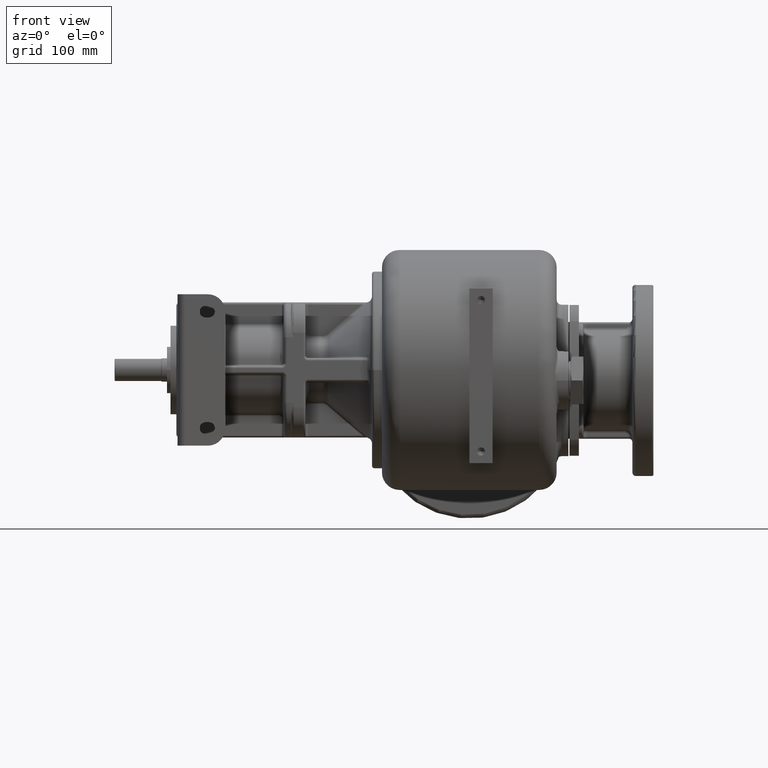
[diagram: clean part render]
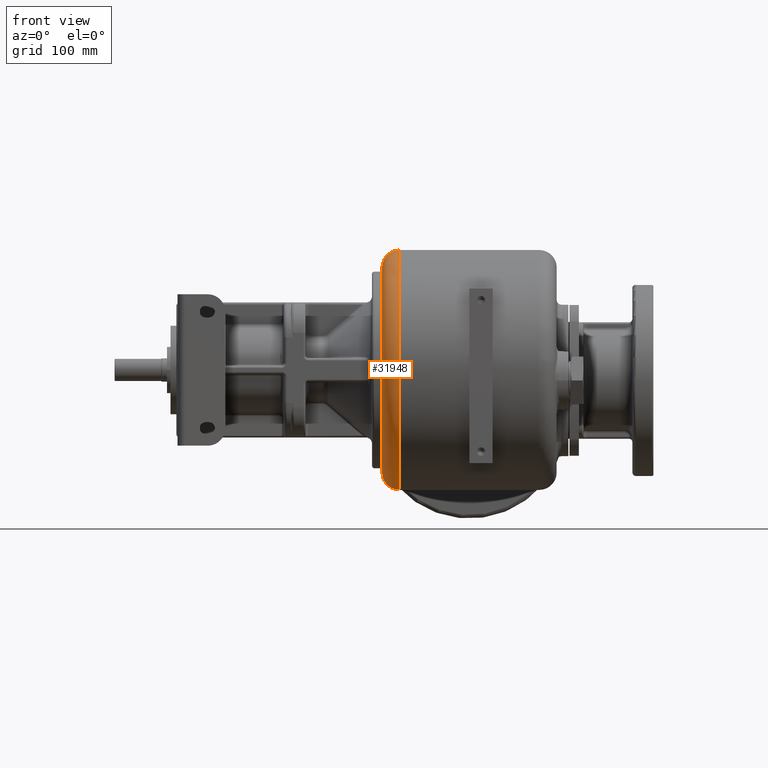
[diagram: same view with one face highlighted and labeled with its STEP entity id]
A machine part, front view. The second image highlights one B-rep face of the part: STEP entity #31948.
In plain terms, the highlighted toroidal blend (fillet) surface has major radius 88 mm and minor (blend) radius 15 mm.
Its self-contained STEP definition (entity closure, byte-faithful):
#5384=CARTESIAN_POINT('',(-8.5E1,1.04E2,0.E0));
#5385=DIRECTION('',(-1.E0,0.E0,0.E0));
#5386=DIRECTION('',(0.E0,0.E0,-1.E0));
#5387=AXIS2_PLACEMENT_3D('',#5384,#5385,#5386);
#11907=CARTESIAN_POINT('',(-7.E1,1.04E2,-8.8E1));
#11908=DIRECTION('',(0.E0,-1.E0,0.E0));
#11909=DIRECTION('',(-1.E0,0.E0,0.E0));
#11910=AXIS2_PLACEMENT_3D('',#11907,#11908,#11909);
#11912=CARTESIAN_POINT('',(-7.E1,1.04E2,8.8E1));
#11913=DIRECTION('',(0.E0,1.E0,0.E0));
#11914=DIRECTION('',(-1.E0,0.E0,0.E0));
#11915=AXIS2_PLACEMENT_3D('',#11912,#11913,#11914);
#12090=CARTESIAN_POINT('',(-7.E1,1.04E2,0.E0));
#12091=DIRECTION('',(-1.E0,0.E0,0.E0));
#12092=DIRECTION('',(0.E0,0.E0,-1.E0));
#12093=AXIS2_PLACEMENT_3D('',#12090,#12091,#12092);
#15863=CARTESIAN_POINT('',(-8.5E1,1.04E2,-8.8E1));
#15864=VERTEX_POINT('',#15863);
#15865=CARTESIAN_POINT('',(-7.E1,1.04E2,-1.03E2));
#15866=VERTEX_POINT('',#15865);
#15867=CARTESIAN_POINT('',(-8.5E1,1.04E2,8.8E1));
#15868=VERTEX_POINT('',#15867);
#15869=CARTESIAN_POINT('',(-7.E1,1.04E2,1.03E2));
#15870=VERTEX_POINT('',#15869);
#31935=CARTESIAN_POINT('',(-7.E1,1.04E2,0.E0));
#31936=DIRECTION('',(-1.E0,0.E0,0.E0));
#31937=DIRECTION('',(0.E0,5.648031819933E-3,-9.999840497411E-1));
#31938=AXIS2_PLACEMENT_3D('',#31935,#31936,#31937);
#31939=TOROIDAL_SURFACE('',#31938,8.8E1,1.5E1);
#31940=ORIENTED_EDGE('',*,*,#25266,.T.);
#31942=ORIENTED_EDGE('',*,*,#31941,.T.);
#31944=ORIENTED_EDGE('',*,*,#31943,.F.);
#31945=ORIENTED_EDGE('',*,*,#31927,.F.);
#31946=EDGE_LOOP('',(#31940,#31942,#31944,#31945));
#31947=FACE_OUTER_BOUND('',#31946,.F.);
#31948=ADVANCED_FACE('',(#31947),#31939,.T.);
#5388=CIRCLE('',#5387,8.8E1);
#11911=CIRCLE('',#11910,1.5E1);
#11916=CIRCLE('',#11915,1.5E1);
#12094=CIRCLE('',#12093,1.03E2);
#25266=EDGE_CURVE('',#15864,#15868,#5388,.T.);
#31927=EDGE_CURVE('',#15864,#15866,#11911,.T.);
#31941=EDGE_CURVE('',#15868,#15870,#11916,.T.);
#31943=EDGE_CURVE('',#15866,#15870,#12094,.T.);